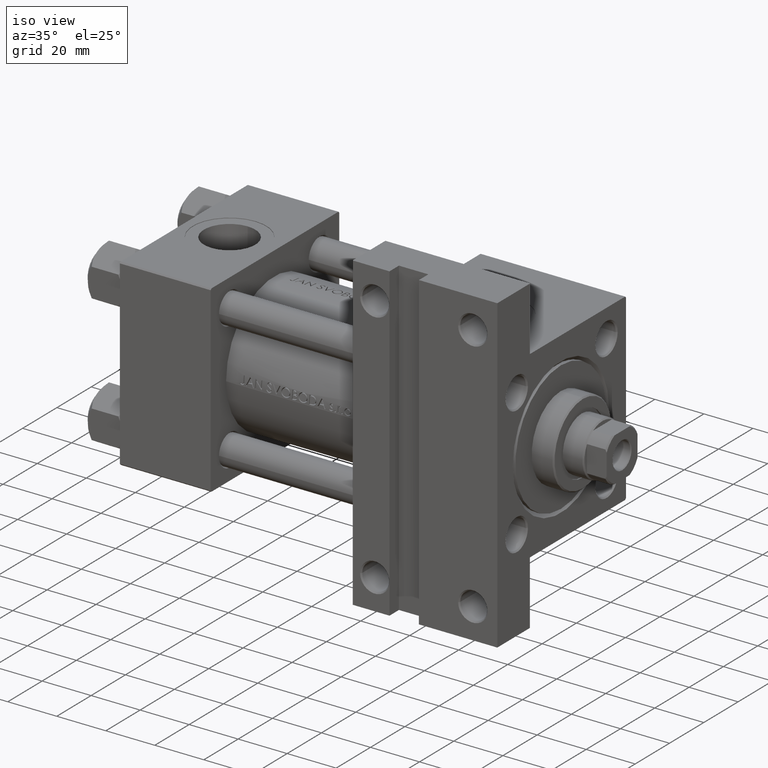
[diagram: clean part render]
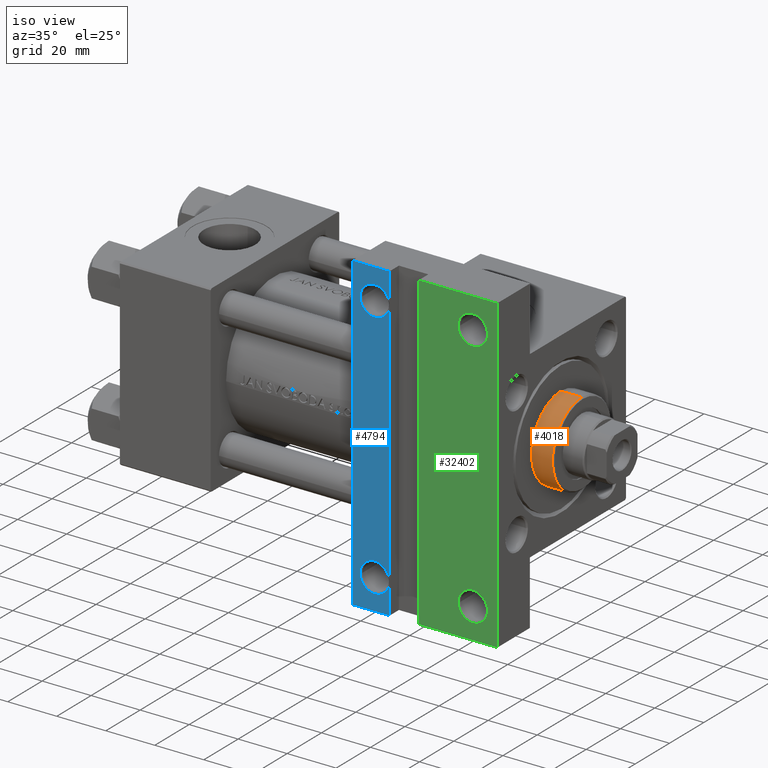
[diagram: same view with three faces highlighted in distinct colors, each labeled with its STEP entity id]
A machine part, iso view with three faces highlighted in distinct colors.
Their STEP definitions:

[orange] entity #4018 — the highlighted cylindrical surface (partial cylindrical patch) has radius 17 mm, axis along (-1, 0, 0).
#222 = CIRCLE ( 'NONE', #31536, 17.00000000000000000 ) ;
#1486 = EDGE_LOOP ( 'NONE', ( #29902, #25633, #19795, #14730 ) ) ;
#2390 = VECTOR ( 'NONE', #10102, 1000.000000000000000 ) ;
#3827 = CARTESIAN_POINT ( 'NONE',  ( 0.000000000000000000, 0.000000000000000000, 28.69999999999999929 ) ) ;
#4018 = ADVANCED_FACE ( 'NONE', ( #13618 ), #25174, .T. ) ;
#5594 = DIRECTION ( 'NONE',  ( -0.000000000000000000, -0.000000000000000000, -1.000000000000000000 ) ) ;
#7012 = VERTEX_POINT ( 'NONE', #9004 ) ;
#9004 = CARTESIAN_POINT ( 'NONE',  ( 17.00000000000000000, 2.081899558550500280E-15, 37.19999999999999574 ) ) ;
#9814 = VECTOR ( 'NONE', #23188, 1000.000000000000000 ) ;
#10095 = DIRECTION ( 'NONE',  ( -1.000000000000000000, 0.000000000000000000, 0.000000000000000000 ) ) ;
#10102 = DIRECTION ( 'NONE',  ( -0.000000000000000000, -0.000000000000000000, -1.000000000000000000 ) ) ;
#13618 = FACE_OUTER_BOUND ( 'NONE', #1486, .T. ) ;
#14730 = ORIENTED_EDGE ( 'NONE', *, *, #15002, .F. ) ;
#14966 = CIRCLE ( 'NONE', #33444, 17.00000000000000000 ) ;
#15002 = EDGE_CURVE ( 'NONE', #46861, #26778, #49029, .T. ) ;
#15635 = DIRECTION ( 'NONE',  ( 0.000000000000000000, 0.000000000000000000, 1.000000000000000000 ) ) ;
#15911 = DIRECTION ( 'NONE',  ( 1.000000000000000000, 0.000000000000000000, 0.000000000000000000 ) ) ;
#17398 = AXIS2_PLACEMENT_3D ( 'NONE', #40487, #5594, #10095 ) ;
#18711 = EDGE_CURVE ( 'NONE', #46861, #7012, #222, .T. ) ;
#19795 = ORIENTED_EDGE ( 'NONE', *, *, #42958, .T. ) ;
#23188 = DIRECTION ( 'NONE',  ( -0.000000000000000000, -0.000000000000000000, -1.000000000000000000 ) ) ;
#25174 = CYLINDRICAL_SURFACE ( 'NONE', #17398, 17.00000000000000000 ) ;
#25633 = ORIENTED_EDGE ( 'NONE', *, *, #30173, .T. ) ;
#26778 = VERTEX_POINT ( 'NONE', #46701 ) ;
#29902 = ORIENTED_EDGE ( 'NONE', *, *, #18711, .T. ) ;
#30173 = EDGE_CURVE ( 'NONE', #7012, #33902, #33763, .T. ) ;
#31536 = AXIS2_PLACEMENT_3D ( 'NONE', #41787, #46321, #15911 ) ;
#33444 = AXIS2_PLACEMENT_3D ( 'NONE', #3827, #15635, #38741 ) ;
#33763 = LINE ( 'NONE', #37785, #9814 ) ;
#33902 = VERTEX_POINT ( 'NONE', #47725 ) ;
#37785 = CARTESIAN_POINT ( 'NONE',  ( 17.00000000000000000, 2.081899558550500280E-15, 37.69999999999999574 ) ) ;
#38741 = DIRECTION ( 'NONE',  ( 1.000000000000000000, 0.000000000000000000, 0.000000000000000000 ) ) ;
#40487 = CARTESIAN_POINT ( 'NONE',  ( 0.000000000000000000, 0.000000000000000000, 37.69999999999999574 ) ) ;
#41787 = CARTESIAN_POINT ( 'NONE',  ( 0.000000000000000000, 0.000000000000000000, 37.19999999999999574 ) ) ;
#42958 = EDGE_CURVE ( 'NONE', #33902, #26778, #14966, .T. ) ;
#44781 = CARTESIAN_POINT ( 'NONE',  ( -17.00000000000000000, 0.000000000000000000, 37.69999999999999574 ) ) ;
#46321 = DIRECTION ( 'NONE',  ( 0.000000000000000000, 0.000000000000000000, -1.000000000000000000 ) ) ;
#46701 = CARTESIAN_POINT ( 'NONE',  ( -17.00000000000000000, 0.000000000000000000, 28.69999999999999929 ) ) ;
#46794 = CARTESIAN_POINT ( 'NONE',  ( -17.00000000000000000, 0.000000000000000000, 37.19999999999999574 ) ) ;
#46861 = VERTEX_POINT ( 'NONE', #46794 ) ;
#47725 = CARTESIAN_POINT ( 'NONE',  ( 17.00000000000000000, 2.081899558550500280E-15, 28.69999999999999929 ) ) ;
#49029 = LINE ( 'NONE', #44781, #2390 ) ;

[blue] entity #4794 — the highlighted planar face has unit normal (0, -1, 0).
#694 = ORIENTED_EDGE ( 'NONE', *, *, #25149, .T. ) ;
#1075 = AXIS2_PLACEMENT_3D ( 'NONE', #46201, #16784, #27843 ) ;
#1172 = DIRECTION ( 'NONE',  ( -1.000000000000000000, 4.704334850106596780E-16, -0.000000000000000000 ) ) ;
#1245 = EDGE_LOOP ( 'NONE', ( #30125, #35540 ) ) ;
#1335 = CARTESIAN_POINT ( 'NONE',  ( 95.00000000000000000, 63.50000000000000000, -37.50000000000000000 ) ) ;
#1490 = VERTEX_POINT ( 'NONE', #9437 ) ;
#2860 = VERTEX_POINT ( 'NONE', #24781 ) ;
#3026 = VECTOR ( 'NONE', #23454, 1000.000000000000000 ) ;
#3725 = ORIENTED_EDGE ( 'NONE', *, *, #8317, .F. ) ;
#3881 = CARTESIAN_POINT ( 'NONE',  ( 103.9999999999999574, -50.99999999999999289, -37.50000000000000000 ) ) ;
#3951 = CARTESIAN_POINT ( 'NONE',  ( 94.99999999999998579, -63.50000000000000000, -37.50000000000000000 ) ) ;
#4597 = AXIS2_PLACEMENT_3D ( 'NONE', #25247, #17709, #33780 ) ;
#4794 = ADVANCED_FACE ( 'NONE', ( #6163, #26248, #33282 ), #21965, .T. ) ;
#5358 = LINE ( 'NONE', #1335, #3026 ) ;
#6163 = FACE_OUTER_BOUND ( 'NONE', #33828, .T. ) ;
#6391 = EDGE_CURVE ( 'NONE', #12185, #2860, #5358, .T. ) ;
#6940 = DIRECTION ( 'NONE',  ( -0.000000000000000000, -0.000000000000000000, 1.000000000000000000 ) ) ;
#8317 = EDGE_CURVE ( 'NONE', #12185, #35600, #8807, .T. ) ;
#8807 = LINE ( 'NONE', #19614, #40012 ) ;
#8970 = CARTESIAN_POINT ( 'NONE',  ( 98.00049999999993133, -50.99999999999999289, -37.50000000000000000 ) ) ;
#9437 = CARTESIAN_POINT ( 'NONE',  ( 109.9994999999999692, 50.99999999999999289, -37.50000000000000000 ) ) ;
#9871 = VECTOR ( 'NONE', #1172, 1000.000000000000000 ) ;
#10307 = CARTESIAN_POINT ( 'NONE',  ( 110.0000000000000000, -63.50000000000000000, -37.50000000000000000 ) ) ;
#10919 = AXIS2_PLACEMENT_3D ( 'NONE', #3881, #49356, #18962 ) ;
#11476 = CIRCLE ( 'NONE', #1075, 5.999500000000018929 ) ;
#11526 = AXIS2_PLACEMENT_3D ( 'NONE', #37081, #6940, #22260 ) ;
#11980 = LINE ( 'NONE', #3951, #9871 ) ;
#12185 = VERTEX_POINT ( 'NONE', #23327 ) ;
#13158 = CIRCLE ( 'NONE', #32431, 5.999500000000018929 ) ;
#13355 = VERTEX_POINT ( 'NONE', #10307 ) ;
#13941 = EDGE_CURVE ( 'NONE', #13355, #2860, #33156, .T. ) ;
#14233 = ORIENTED_EDGE ( 'NONE', *, *, #35261, .T. ) ;
#16784 = DIRECTION ( 'NONE',  ( -0.000000000000000000, -0.000000000000000000, 1.000000000000000000 ) ) ;
#17709 = DIRECTION ( 'NONE',  ( 0.000000000000000000, 0.000000000000000000, -1.000000000000000000 ) ) ;
#18962 = DIRECTION ( 'NONE',  ( -1.000000000000000000, 0.000000000000000000, 0.000000000000000000 ) ) ;
#19328 = EDGE_CURVE ( 'NONE', #1490, #49460, #11476, .T. ) ;
#19614 = CARTESIAN_POINT ( 'NONE',  ( 95.00000000000000000, 37.50000000000000000, -37.50000000000000000 ) ) ;
#21965 = PLANE ( 'NONE',  #4597 ) ;
#22260 = DIRECTION ( 'NONE',  ( -1.000000000000000000, 0.000000000000000000, 0.000000000000000000 ) ) ;
#23234 = ORIENTED_EDGE ( 'NONE', *, *, #6391, .T. ) ;
#23327 = CARTESIAN_POINT ( 'NONE',  ( 95.00000000000000000, 63.50000000000000000, -37.50000000000000000 ) ) ;
#23454 = DIRECTION ( 'NONE',  ( 1.000000000000000000, 0.000000000000000000, 0.000000000000000000 ) ) ;
#24781 = CARTESIAN_POINT ( 'NONE',  ( 110.0000000000000000, 63.50000000000000000, -37.50000000000000000 ) ) ;
#25149 = EDGE_CURVE ( 'NONE', #32891, #44594, #13158, .T. ) ;
#25247 = CARTESIAN_POINT ( 'NONE',  ( 154.0000000000000000, 37.50000000000000000, -37.50000000000000000 ) ) ;
#26248 = FACE_BOUND ( 'NONE', #1245, .T. ) ;
#27843 = DIRECTION ( 'NONE',  ( -1.000000000000000000, 0.000000000000000000, 0.000000000000000000 ) ) ;
#29391 = DIRECTION ( 'NONE',  ( 0.000000000000000000, 1.000000000000000000, 0.000000000000000000 ) ) ;
#30125 = ORIENTED_EDGE ( 'NONE', *, *, #33101, .T. ) ;
#32369 = CIRCLE ( 'NONE', #11526, 5.999500000000018929 ) ;
#32431 = AXIS2_PLACEMENT_3D ( 'NONE', #47092, #42803, #39787 ) ;
#32581 = CIRCLE ( 'NONE', #10919, 5.999500000000018929 ) ;
#32891 = VERTEX_POINT ( 'NONE', #8970 ) ;
#33101 = EDGE_CURVE ( 'NONE', #49460, #1490, #32369, .T. ) ;
#33156 = LINE ( 'NONE', #48474, #33645 ) ;
#33282 = FACE_BOUND ( 'NONE', #38830, .T. ) ;
#33645 = VECTOR ( 'NONE', #29391, 1000.000000000000000 ) ;
#33780 = DIRECTION ( 'NONE',  ( -1.000000000000000000, 0.000000000000000000, -0.000000000000000000 ) ) ;
#33828 = EDGE_LOOP ( 'NONE', ( #48888, #14233, #3725, #23234 ) ) ;
#34938 = DIRECTION ( 'NONE',  ( 0.000000000000000000, -1.000000000000000000, 0.000000000000000000 ) ) ;
#35261 = EDGE_CURVE ( 'NONE', #13355, #35600, #11980, .T. ) ;
#35540 = ORIENTED_EDGE ( 'NONE', *, *, #19328, .T. ) ;
#35600 = VERTEX_POINT ( 'NONE', #39728 ) ;
#37081 = CARTESIAN_POINT ( 'NONE',  ( 103.9999999999999574, 50.99999999999999289, -37.50000000000000000 ) ) ;
#38771 = CARTESIAN_POINT ( 'NONE',  ( 109.9994999999999692, -50.99999999999999289, -37.50000000000000000 ) ) ;
#38830 = EDGE_LOOP ( 'NONE', ( #694, #47674 ) ) ;
#39728 = CARTESIAN_POINT ( 'NONE',  ( 94.99999999999998579, -63.50000000000000000, -37.50000000000000000 ) ) ;
#39787 = DIRECTION ( 'NONE',  ( -1.000000000000000000, 0.000000000000000000, 0.000000000000000000 ) ) ;
#40012 = VECTOR ( 'NONE', #34938, 1000.000000000000000 ) ;
#42595 = EDGE_CURVE ( 'NONE', #44594, #32891, #32581, .T. ) ;
#42803 = DIRECTION ( 'NONE',  ( -0.000000000000000000, -0.000000000000000000, 1.000000000000000000 ) ) ;
#43994 = CARTESIAN_POINT ( 'NONE',  ( 98.00049999999993133, 50.99999999999999289, -37.50000000000000000 ) ) ;
#44594 = VERTEX_POINT ( 'NONE', #38771 ) ;
#46201 = CARTESIAN_POINT ( 'NONE',  ( 103.9999999999999574, 50.99999999999999289, -37.50000000000000000 ) ) ;
#47092 = CARTESIAN_POINT ( 'NONE',  ( 103.9999999999999574, -50.99999999999999289, -37.50000000000000000 ) ) ;
#47674 = ORIENTED_EDGE ( 'NONE', *, *, #42595, .T. ) ;
#48474 = CARTESIAN_POINT ( 'NONE',  ( 110.0000000000000000, -63.50000000000000000, -37.50000000000000000 ) ) ;
#48888 = ORIENTED_EDGE ( 'NONE', *, *, #13941, .F. ) ;
#49356 = DIRECTION ( 'NONE',  ( -0.000000000000000000, -0.000000000000000000, 1.000000000000000000 ) ) ;
#49460 = VERTEX_POINT ( 'NONE', #43994 ) ;

[green] entity #32402 — the highlighted planar face has unit normal (0, -1, 0).
#231 = AXIS2_PLACEMENT_3D ( 'NONE', #8027, #12549, #27876 ) ;
#317 = VERTEX_POINT ( 'NONE', #905 ) ;
#377 = CARTESIAN_POINT ( 'NONE',  ( 153.9999999999999716, -63.50000000000002842, -37.50000000000000000 ) ) ;
#641 = ORIENTED_EDGE ( 'NONE', *, *, #21355, .T. ) ;
#905 = CARTESIAN_POINT ( 'NONE',  ( 122.0000000000000000, 63.50000000000000000, -37.50000000000000000 ) ) ;
#2515 = CARTESIAN_POINT ( 'NONE',  ( 143.9999999999999716, 51.00000000000000000, -37.50000000000000000 ) ) ;
#2651 = VERTEX_POINT ( 'NONE', #39233 ) ;
#2793 = CARTESIAN_POINT ( 'NONE',  ( 154.0000000000000000, 37.50000000000000000, -37.50000000000000000 ) ) ;
#3271 = AXIS2_PLACEMENT_3D ( 'NONE', #12404, #4879, #49663 ) ;
#3556 = CIRCLE ( 'NONE', #38845, 5.999499999999990507 ) ;
#4278 = CIRCLE ( 'NONE', #33194, 5.999499999999990507 ) ;
#4782 = EDGE_CURVE ( 'NONE', #49448, #38723, #33470, .T. ) ;
#4879 = DIRECTION ( 'NONE',  ( -0.000000000000000000, -0.000000000000000000, 1.000000000000000000 ) ) ;
#5949 = CARTESIAN_POINT ( 'NONE',  ( 95.00000000000000000, 63.50000000000000000, -37.50000000000000000 ) ) ;
#6443 = DIRECTION ( 'NONE',  ( -0.000000000000000000, -0.000000000000000000, 1.000000000000000000 ) ) ;
#6545 = DIRECTION ( 'NONE',  ( -1.000000000000000000, 0.000000000000000000, 0.000000000000000000 ) ) ;
#7116 = PLANE ( 'NONE',  #231 ) ;
#8027 = CARTESIAN_POINT ( 'NONE',  ( 154.0000000000000000, 37.50000000000000000, -37.50000000000000000 ) ) ;
#8146 = EDGE_LOOP ( 'NONE', ( #641, #14483 ) ) ;
#8407 = ORIENTED_EDGE ( 'NONE', *, *, #33050, .T. ) ;
#10388 = CARTESIAN_POINT ( 'NONE',  ( 149.9994999999999550, 51.00000000000000000, -37.50000000000000000 ) ) ;
#12404 = CARTESIAN_POINT ( 'NONE',  ( 143.9999999999999716, 51.00000000000000000, -37.50000000000000000 ) ) ;
#12549 = DIRECTION ( 'NONE',  ( 0.000000000000000000, 0.000000000000000000, -1.000000000000000000 ) ) ;
#13635 = LINE ( 'NONE', #21416, #45247 ) ;
#14483 = ORIENTED_EDGE ( 'NONE', *, *, #16655, .T. ) ;
#14716 = CARTESIAN_POINT ( 'NONE',  ( 143.9999999999999716, -51.00000000000000000, -37.50000000000000000 ) ) ;
#15188 = CARTESIAN_POINT ( 'NONE',  ( 94.99999999999998579, -63.50000000000000000, -37.50000000000000000 ) ) ;
#15561 = EDGE_CURVE ( 'NONE', #17441, #2651, #18219, .T. ) ;
#16655 = EDGE_CURVE ( 'NONE', #29287, #47462, #30558, .T. ) ;
#16875 = EDGE_CURVE ( 'NONE', #44727, #17441, #22629, .T. ) ;
#17172 = EDGE_CURVE ( 'NONE', #317, #44727, #48640, .T. ) ;
#17441 = VERTEX_POINT ( 'NONE', #377 ) ;
#17850 = DIRECTION ( 'NONE',  ( -0.000000000000000000, -0.000000000000000000, 1.000000000000000000 ) ) ;
#18126 = DIRECTION ( 'NONE',  ( 0.000000000000000000, -1.000000000000000000, 0.000000000000000000 ) ) ;
#18219 = LINE ( 'NONE', #15188, #32925 ) ;
#20035 = EDGE_LOOP ( 'NONE', ( #8407, #42336 ) ) ;
#20887 = EDGE_CURVE ( 'NONE', #317, #2651, #13635, .T. ) ;
#21355 = EDGE_CURVE ( 'NONE', #47462, #29287, #3556, .T. ) ;
#21416 = CARTESIAN_POINT ( 'NONE',  ( 122.0000000000000000, -63.50000000000000000, -37.50000000000000000 ) ) ;
#22280 = ORIENTED_EDGE ( 'NONE', *, *, #17172, .T. ) ;
#22517 = VECTOR ( 'NONE', #28815, 1000.000000000000000 ) ;
#22629 = LINE ( 'NONE', #2793, #46584 ) ;
#25143 = CARTESIAN_POINT ( 'NONE',  ( 149.9994999999999550, -51.00000000000000000, -37.50000000000000000 ) ) ;
#25745 = DIRECTION ( 'NONE',  ( -0.000000000000000000, -0.000000000000000000, 1.000000000000000000 ) ) ;
#27876 = DIRECTION ( 'NONE',  ( -1.000000000000000000, 0.000000000000000000, -0.000000000000000000 ) ) ;
#28815 = DIRECTION ( 'NONE',  ( 1.000000000000000000, 0.000000000000000000, 0.000000000000000000 ) ) ;
#29072 = ORIENTED_EDGE ( 'NONE', *, *, #16875, .T. ) ;
#29287 = VERTEX_POINT ( 'NONE', #10388 ) ;
#30558 = CIRCLE ( 'NONE', #3271, 5.999499999999990507 ) ;
#31655 = FACE_OUTER_BOUND ( 'NONE', #46860, .T. ) ;
#31891 = AXIS2_PLACEMENT_3D ( 'NONE', #45338, #25745, #36800 ) ;
#32402 = ADVANCED_FACE ( 'NONE', ( #31655, #46973, #43190 ), #7116, .T. ) ;
#32670 = ORIENTED_EDGE ( 'NONE', *, *, #20887, .F. ) ;
#32925 = VECTOR ( 'NONE', #33543, 1000.000000000000000 ) ;
#33050 = EDGE_CURVE ( 'NONE', #38723, #49448, #4278, .T. ) ;
#33194 = AXIS2_PLACEMENT_3D ( 'NONE', #14716, #6443, #40847 ) ;
#33470 = CIRCLE ( 'NONE', #31891, 5.999499999999990507 ) ;
#33543 = DIRECTION ( 'NONE',  ( -1.000000000000000000, 4.704334850106596780E-16, -0.000000000000000000 ) ) ;
#34209 = CARTESIAN_POINT ( 'NONE',  ( 154.0000000000000000, 63.50000000000000000, -37.50000000000000000 ) ) ;
#34856 = CARTESIAN_POINT ( 'NONE',  ( 138.0004999999999598, -51.00000000000000000, -37.50000000000000000 ) ) ;
#36489 = DIRECTION ( 'NONE',  ( -0.000000000000000000, -1.000000000000000000, -0.000000000000000000 ) ) ;
#36800 = DIRECTION ( 'NONE',  ( -1.000000000000000000, 0.000000000000000000, 0.000000000000000000 ) ) ;
#38723 = VERTEX_POINT ( 'NONE', #34856 ) ;
#38845 = AXIS2_PLACEMENT_3D ( 'NONE', #2515, #17850, #6545 ) ;
#39233 = CARTESIAN_POINT ( 'NONE',  ( 122.0000000000000000, -63.50000000000000000, -37.50000000000000000 ) ) ;
#40847 = DIRECTION ( 'NONE',  ( -1.000000000000000000, 0.000000000000000000, 0.000000000000000000 ) ) ;
#42336 = ORIENTED_EDGE ( 'NONE', *, *, #4782, .T. ) ;
#43190 = FACE_BOUND ( 'NONE', #8146, .T. ) ;
#43329 = ORIENTED_EDGE ( 'NONE', *, *, #15561, .T. ) ;
#44727 = VERTEX_POINT ( 'NONE', #34209 ) ;
#45247 = VECTOR ( 'NONE', #36489, 1000.000000000000000 ) ;
#45338 = CARTESIAN_POINT ( 'NONE',  ( 143.9999999999999716, -51.00000000000000000, -37.50000000000000000 ) ) ;
#46069 = CARTESIAN_POINT ( 'NONE',  ( 138.0004999999999598, 51.00000000000000000, -37.50000000000000000 ) ) ;
#46584 = VECTOR ( 'NONE', #18126, 1000.000000000000000 ) ;
#46860 = EDGE_LOOP ( 'NONE', ( #32670, #22280, #29072, #43329 ) ) ;
#46973 = FACE_BOUND ( 'NONE', #20035, .T. ) ;
#47462 = VERTEX_POINT ( 'NONE', #46069 ) ;
#48640 = LINE ( 'NONE', #5949, #22517 ) ;
#49448 = VERTEX_POINT ( 'NONE', #25143 ) ;
#49663 = DIRECTION ( 'NONE',  ( -1.000000000000000000, 0.000000000000000000, 0.000000000000000000 ) ) ;